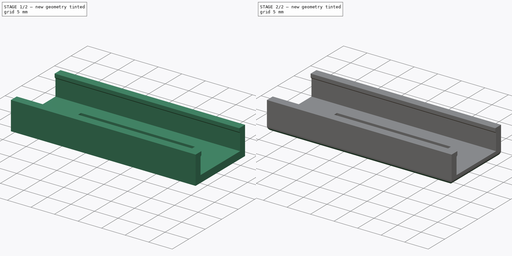
[diagram: build sequence overview — one tinted view per stage of 2, left to right]
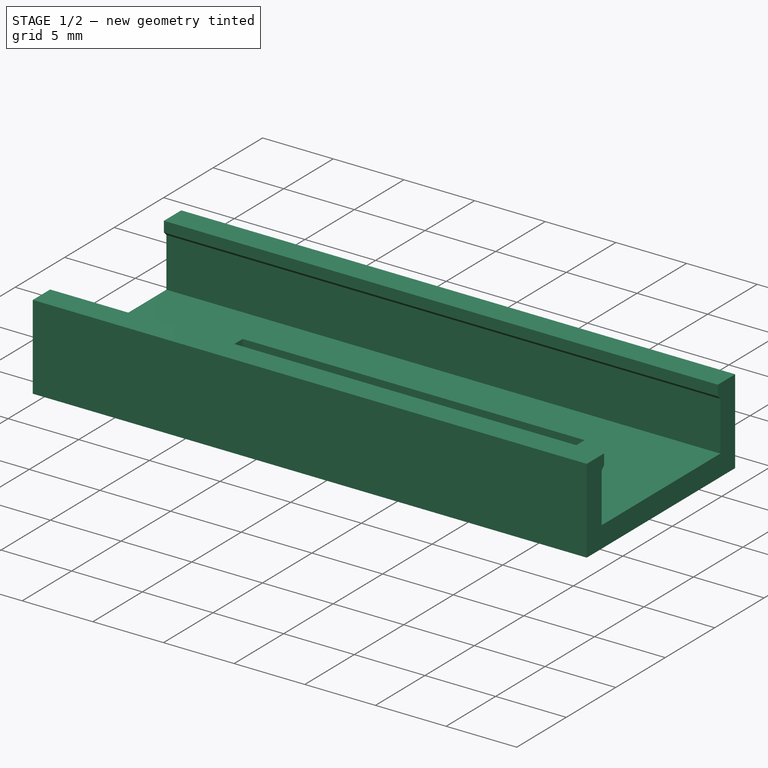
[diagram: stage 1 of 2 — iso view after this stage's code; geometry added in this stage tinted green]
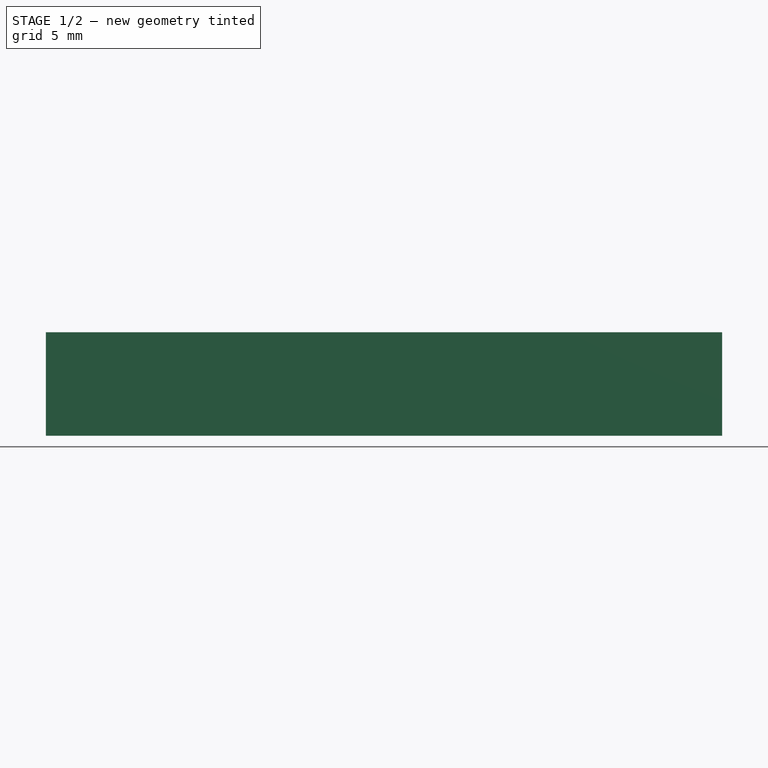
[diagram: stage 1 of 2 — front view after this stage's code; geometry added in this stage tinted green]
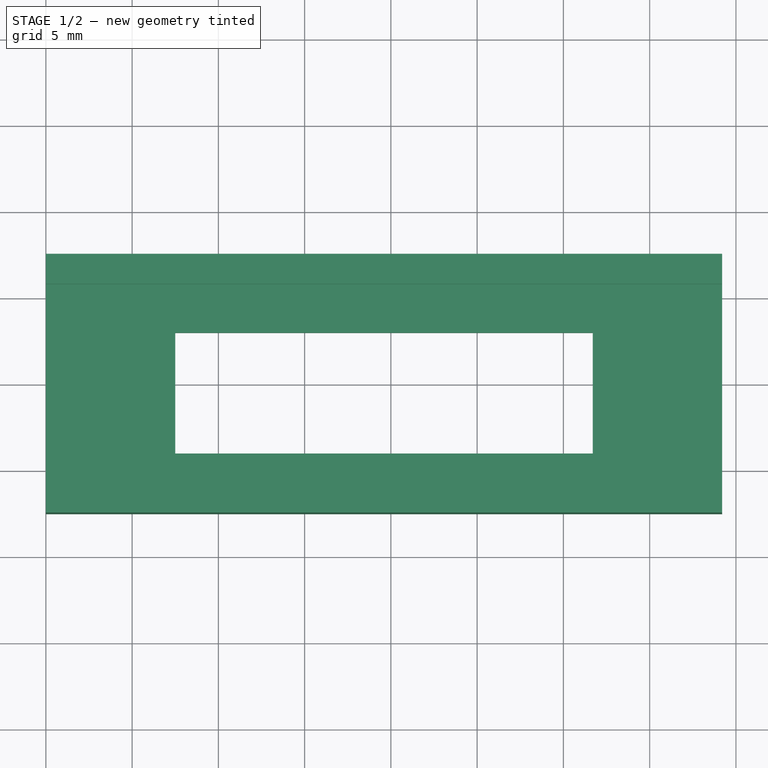
[diagram: stage 1 of 2 — top view after this stage's code; geometry added in this stage tinted green]
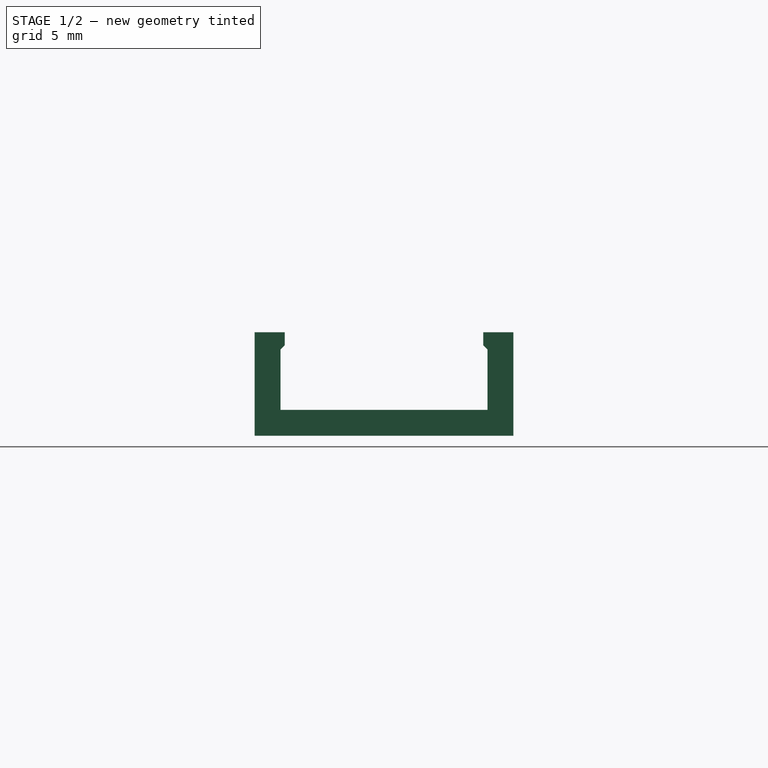
[diagram: stage 1 of 2 — right view after this stage's code; geometry added in this stage tinted green]
FCSTD DOCUMENT  (FreeCAD 0.20R27319 (Git))
Label: OLED Surround
License: All rights reserved
LicenseURL: http://en.wikipedia.org/wiki/All_rights_reserved
objects: Sketcher::SketchObject×2, Spreadsheet::Sheet×1, PartDesign::Pad×1, PartDesign::Pocket×1, PartDesign::Fillet×1, PartDesign::Body×1
note: 9 computed .brp shape members not serialized (recipe doc carries the construction recipe); baked Part::Feature solids carry a one-line shape summary decoded from their .brp

FEATURE [Spreadsheet::Sheet] Spreadsheet
  cells = A1=Wall thickness; B1(WallThickness)=1.5; A2=Width; B2(Width)=39.2; C2=Width of LCD (internal size of cover); A3=Height; B3(Height)=12; C3=Height of LCD (internal size of cover)
FEATURE [Sketcher::SketchObject] Sketch
  FullyConstrained = true
  MapMode = 5
  Placement = pos=(0,0,0) rot=(0.57735,0.57735,0.57735;2.0944rad)
  Support = -> [YZ_Plane]
  expr: Constraints[27] = Spreadsheet.WallThickness
  expr: Constraints[28] = Spreadsheet.WallThickness + 0.25
  expr: Constraints[32] = Spreadsheet.Height
  sketch-geometry (12):
    g0: LineSegment StartX=7.5 StartY=0 StartZ=0 EndX=7.5 EndY=6 EndZ=0
    g1: LineSegment StartX=7.5 StartY=6 StartZ=0 EndX=5.75 EndY=6 EndZ=0
    g2: LineSegment StartX=5.75 StartY=6 StartZ=0 EndX=5.75 EndY=5.25 EndZ=0
    g3: LineSegment StartX=5.75 StartY=5.25 StartZ=0 EndX=6 EndY=5 EndZ=0
    g4: LineSegment StartX=6 StartY=5 StartZ=0 EndX=6 EndY=1.5 EndZ=0
    g5: LineSegment StartX=6 StartY=1.5 StartZ=0 EndX=-6 EndY=1.5 EndZ=0
    g6: LineSegment StartX=-6 StartY=1.5 StartZ=0 EndX=-6 EndY=5 EndZ=0
    g7: LineSegment StartX=-6 StartY=5 StartZ=0 EndX=-5.75 EndY=5.25 EndZ=0
    g8: LineSegment StartX=-5.75 StartY=5.25 StartZ=0 EndX=-5.75 EndY=6 EndZ=0
    g9: LineSegment StartX=-5.75 StartY=6 StartZ=0 EndX=-7.5 EndY=6 EndZ=0
    g10: LineSegment StartX=-7.5 StartY=6 StartZ=0 EndX=-7.5 EndY=0 EndZ=0
    g11: LineSegment StartX=-7.5 StartY=0 StartZ=0 EndX=7.5 EndY=0 EndZ=0
  constraints (33):
    c: PointOnObject(g0,g-1)
    c: Vertical(g0)
    c: Coincident(g0,g1)
    c: Horizontal(g1)
    c: Coincident(g1,g2)
    c: Vertical(g2)
    c: Coincident(g2,g3)
    c: Coincident(g3,g4)
    c: Vertical(g4)
    c: Coincident(g4,g5)
    c: Coincident(g5,g6)
    c: Vertical(g6)
    c: Coincident(g6,g7)
    c: Coincident(g7,g8)
    c: Vertical(g8)
    c: Coincident(g8,g9)
    c: Horizontal(g9)
    c: Coincident(g9,g10)
    c: PointOnObject(g10,g-1)
    c: Vertical(g10)
    c: Coincident(g10,g11)
    c: Coincident(g11,g0)
    c: Symmetric(g9,g0,g-2)
    c: Symmetric(g2,g7,g-2)
    c: Symmetric(g5,g4,g-2)
    c: Horizontal(g6,g3)
    c: DistanceY(g0,g4) = 1.5
    c: DistanceX(g4,g0) = 1.5
    c: DistanceX(g1,g0) = 1.75
    c: Angle(g3,g11) = 0.785398
    c: DistanceY(g4,g1) = 4.5
    c: DistanceY(g4,g4) = 3.5
    c: DistanceX(g5,g4) = 12
FEATURE [PartDesign::Pad] Pad
  Direction = (1,-2e-16,3e-16)
  Length = 39.2
  Length2 = 10
  Placement = pos=(0,0,0) rot=(0.57735,0.57735,0.57735;2.0944rad)
  Profile = -> Sketch
  ReferenceAxis = -> Sketch [N_Axis]
  Type = 0
  expr: Length = Spreadsheet.Width
FEATURE [Sketcher::SketchObject] Sketch001
  ExternalGeometry = -> [Pad]
  FullyConstrained = true
  MapMode = 5
  Placement = pos=(0,0,0) rot=(0.707107,0.707107,0;3.14159rad)
  Support = -> [Pad]
  expr: Constraints[8] = Spreadsheet.WallThickness + 2
  expr: Constraints[9] = Spreadsheet.WallThickness + 3
  sketch-geometry (4):
    g0: LineSegment StartX=-4 StartY=7.5 StartZ=0 EndX=3 EndY=7.5 EndZ=0
    g1: LineSegment StartX=3 StartY=7.5 StartZ=0 EndX=3 EndY=31.7 EndZ=0
    g2: LineSegment StartX=3 StartY=31.7 StartZ=0 EndX=-4 EndY=31.7 EndZ=0
    g3: LineSegment StartX=-4 StartY=31.7 StartZ=0 EndX=-4 EndY=7.5 EndZ=0
  constraints (12):
    c: Coincident(g0,g1)
    c: Coincident(g1,g2)
    c: Coincident(g2,g3)
    c: Coincident(g3,g0)
    c: Horizontal(g0)
    c: Horizontal(g2)
    c: Vertical(g1)
    c: Vertical(g3)
    c: DistanceX(g-3,g0) = 3.5
    c: DistanceX(g1,g-4) = 4.5
    c: DistanceY(g-3,g0) = 7.5
    c: DistanceY(g1,g-4) = 7.5
FEATURE [PartDesign::Pocket] Pocket
  BaseFeature = -> Pad
  Direction = (-3e-16,4e-16,1)
  Length = 5
  Length2 = 5
  Placement = pos=(0,0,0) rot=(0.57735,0.57735,0.57735;2.0944rad)
  Profile = -> Sketch001
  ReferenceAxis = -> Sketch001 [N_Axis]
  Type = 1
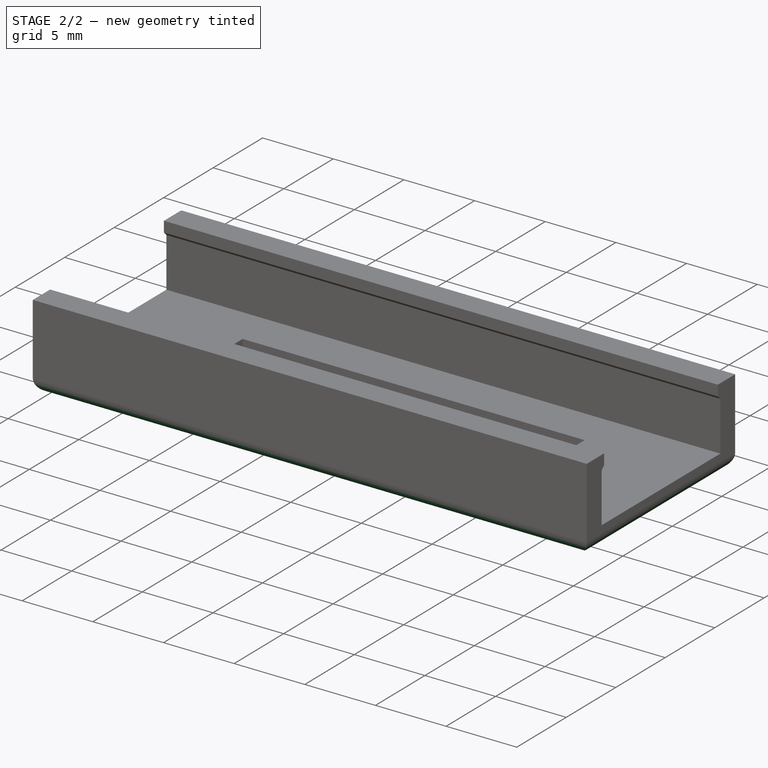
[diagram: stage 2 of 2 — iso view after this stage's code; geometry added in this stage tinted green]
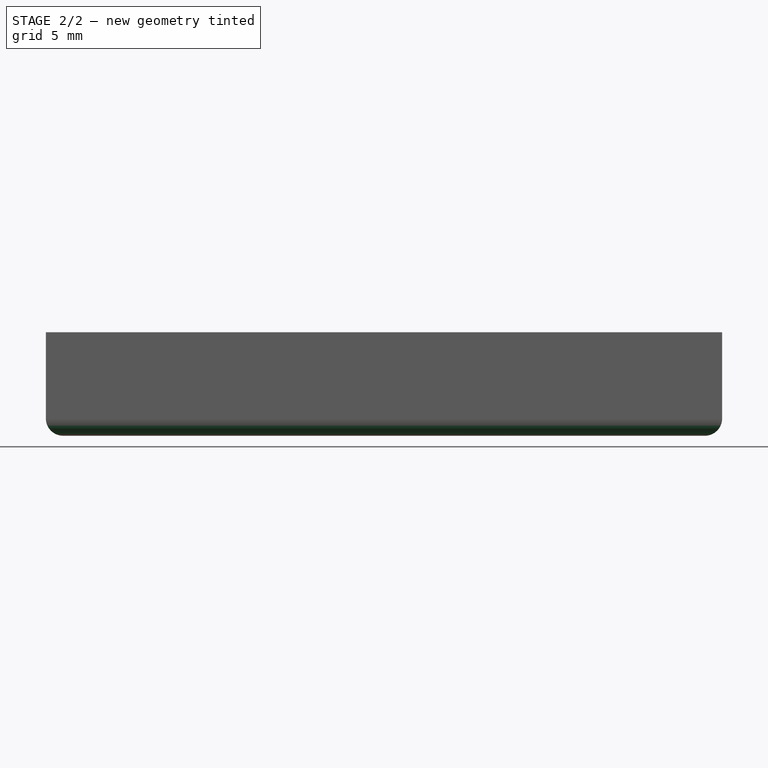
[diagram: stage 2 of 2 — front view after this stage's code; geometry added in this stage tinted green]
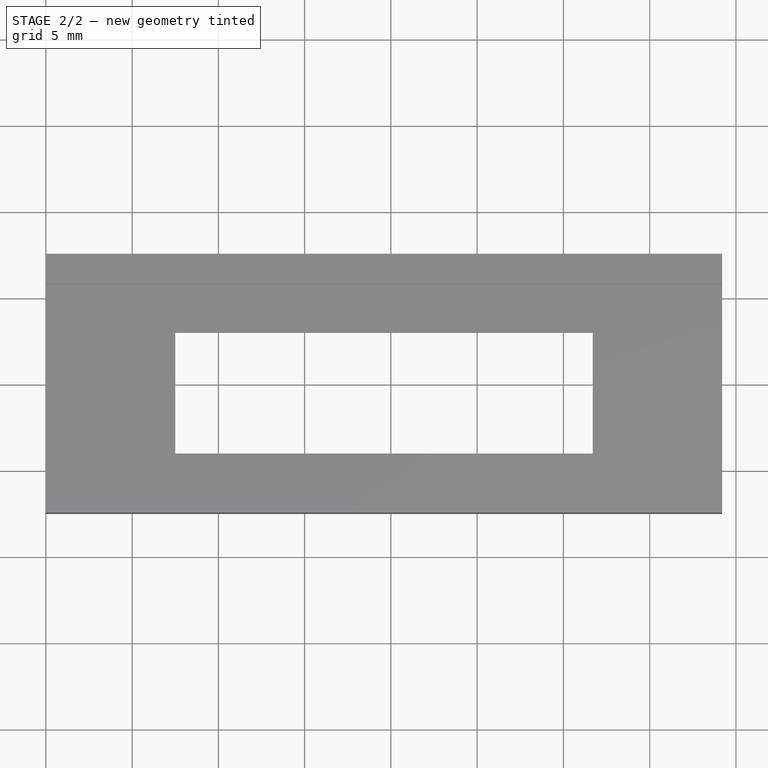
[diagram: stage 2 of 2 — top view after this stage's code; geometry added in this stage tinted green]
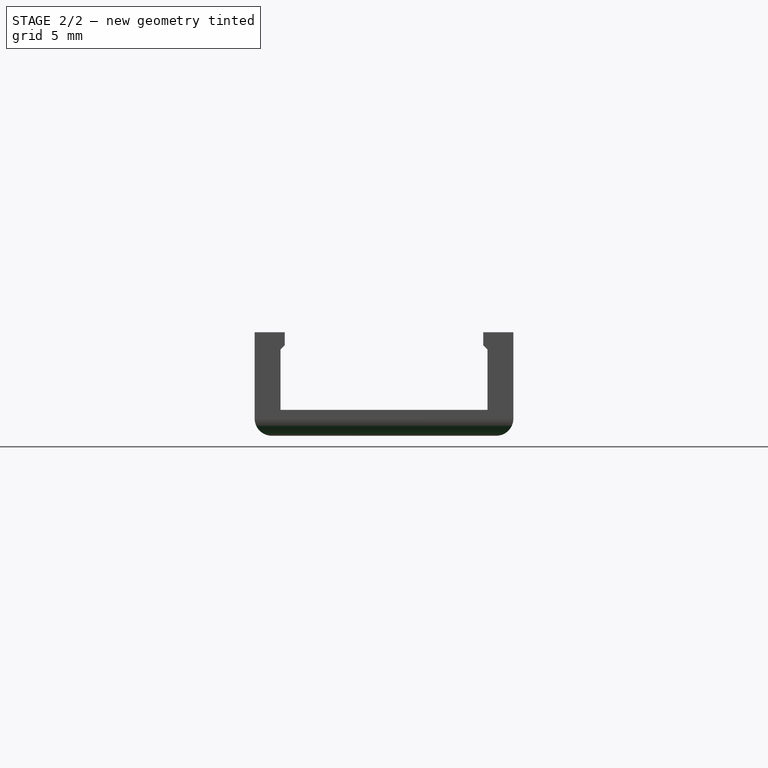
[diagram: stage 2 of 2 — right view after this stage's code; geometry added in this stage tinted green]
FEATURE [PartDesign::Fillet] Fillet
  Base = -> Pocket [Face2]
  BaseFeature = -> Pocket
  Placement = pos=(0,0,0) rot=(0.57735,0.57735,0.57735;2.0944rad)
  Radius = 1
  SupportTransform = false
FEATURE [PartDesign::Body] Body
  Group = -> [Sketch,Pad,Sketch001,Pocket,Fillet]
  Origin = -> Origin
  Tip = -> Fillet
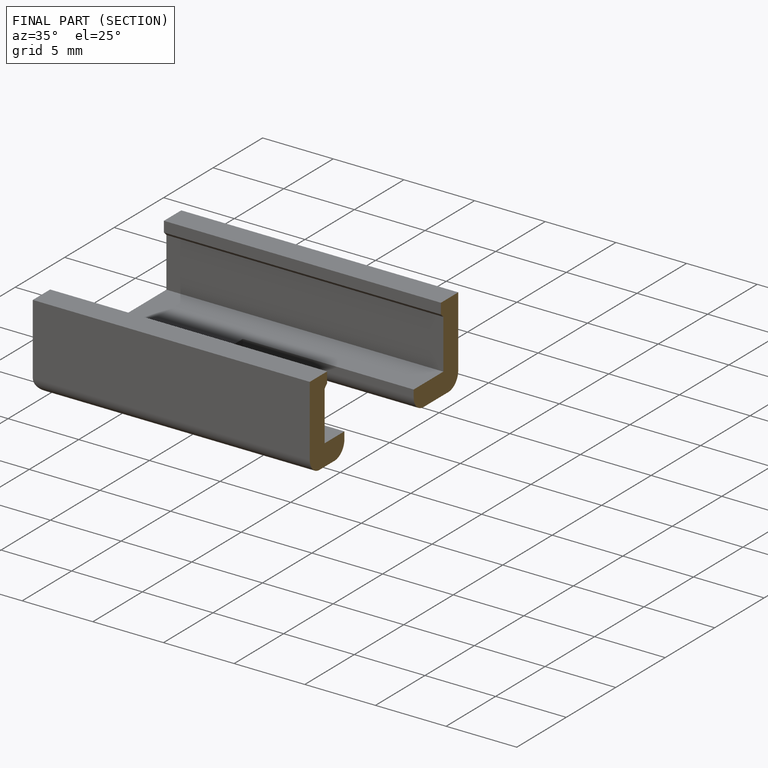
[diagram: finished part — half-section view (interior)]
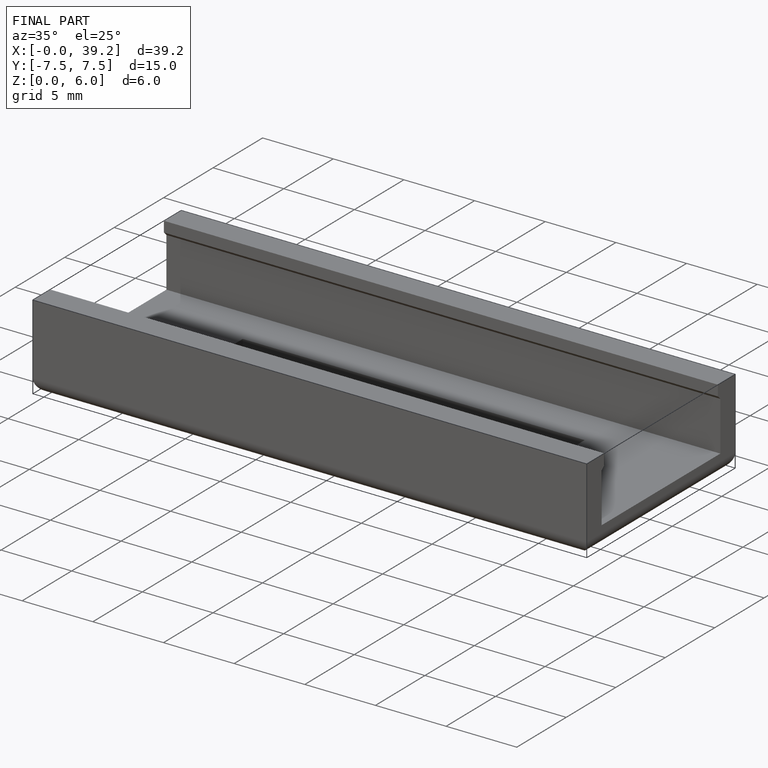
[diagram: finished part — iso view with bounding-box wireframe]
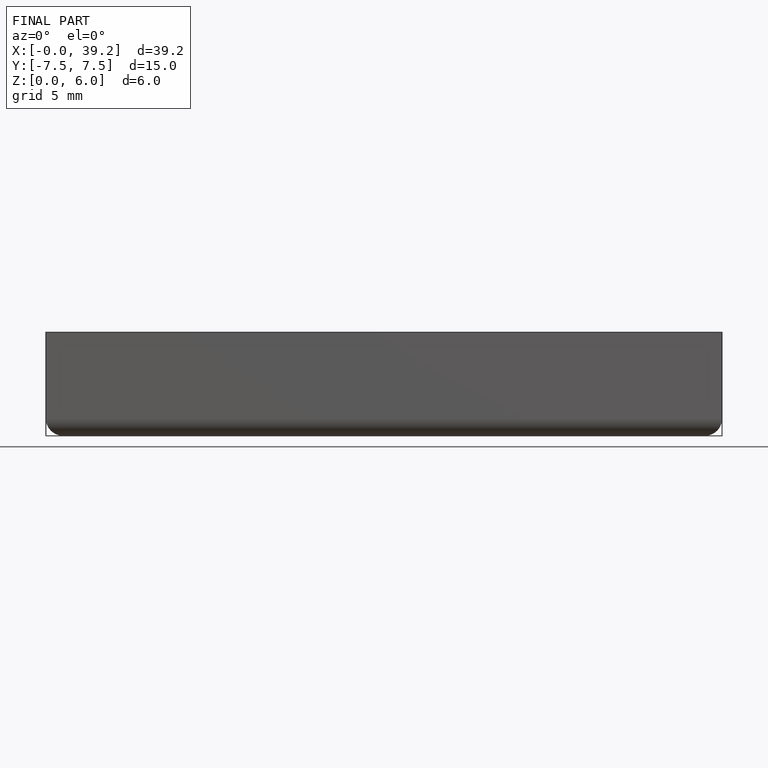
[diagram: finished part — front view with bounding-box wireframe]
